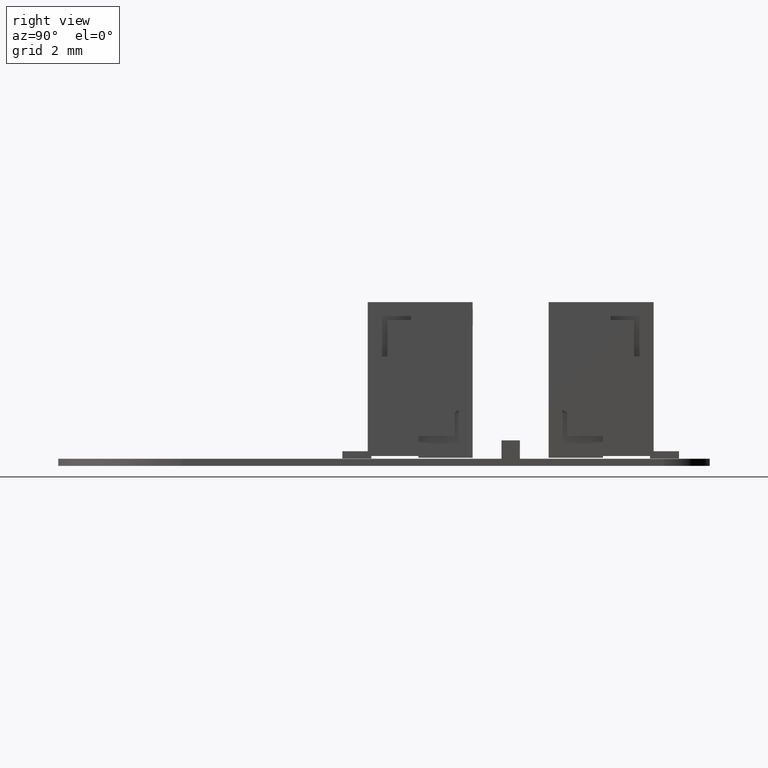
[diagram: clean part render]
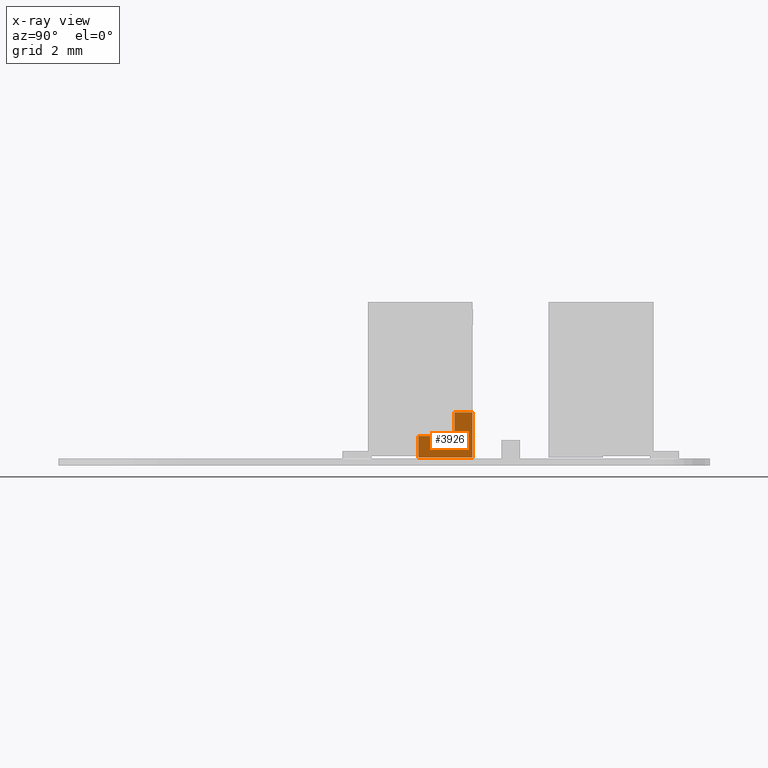
[diagram: x-ray — body ghosted, one internal face saturated and labeled with its STEP entity id]
A machine part, right view, then the same camera in x-ray: the body is ghosted and one INTERNAL B-rep face — a face not visible from any outside direction — is saturated and labeled: STEP entity #3926.
In plain terms, the highlighted planar face has unit normal (-1, -0, -0).
Its self-contained STEP definition (entity closure, byte-faithful):
#3744 = EDGE_CURVE('',#3745,#3747,#3749,.T.);
#3745 = VERTEX_POINT('',#3746);
#3746 = CARTESIAN_POINT('',(-2.5,-5.E-02,0.8));
#3747 = VERTEX_POINT('',#3748);
#3748 = CARTESIAN_POINT('',(-2.5,0.55,0.8));
#3749 = LINE('',#3750,#3751);
#3750 = CARTESIAN_POINT('',(-2.5,-5.E-02,0.8));
#3751 = VECTOR('',#3752,1.);
#3752 = DIRECTION('',(0.,1.,0.));
#3785 = VERTEX_POINT('',#3786);
#3786 = CARTESIAN_POINT('',(-2.5,1.2,-0.7));
#3794 = EDGE_CURVE('',#3785,#3795,#3797,.T.);
#3795 = VERTEX_POINT('',#3796);
#3796 = CARTESIAN_POINT('',(-2.5,-5.E-02,-0.7));
#3797 = LINE('',#3798,#3799);
#3798 = CARTESIAN_POINT('',(-2.5,6.420153254455,-0.7));
#3799 = VECTOR('',#3800,1.);
#3800 = DIRECTION('',(-1.224606353822E-16,-1.,8.551385416559E-31));
#3824 = EDGE_CURVE('',#3825,#3785,#3827,.T.);
#3825 = VERTEX_POINT('',#3826);
#3826 = CARTESIAN_POINT('',(-2.5,1.2,-0.2));
#3827 = LINE('',#3828,#3829);
#3828 = CARTESIAN_POINT('',(-2.5,1.2,0.8));
#3829 = VECTOR('',#3830,1.);
#3830 = DIRECTION('',(-5.20417042793E-15,0.,-1.));
#3855 = EDGE_CURVE('',#3825,#3856,#3858,.T.);
#3856 = VERTEX_POINT('',#3857);
#3857 = CARTESIAN_POINT('',(-2.5,0.55,-0.2));
#3858 = LINE('',#3859,#3860);
#3859 = CARTESIAN_POINT('',(-2.5,3.399328261452E-16,-0.2));
#3860 = VECTOR('',#3861,1.);
#3861 = DIRECTION('',(-1.224606353822E-16,-1.,1.668003342285E-15));
#3886 = EDGE_CURVE('',#3856,#3747,#3887,.T.);
#3887 = LINE('',#3888,#3889);
#3888 = CARTESIAN_POINT('',(-2.5,0.55,7.937898678886E-15));
#3889 = VECTOR('',#3890,1.);
#3890 = DIRECTION('',(5.20417042793E-15,-4.336808689942E-16,1.));
#3915 = EDGE_CURVE('',#3795,#3745,#3916,.T.);
#3916 = LINE('',#3917,#3918);
#3917 = CARTESIAN_POINT('',(-2.5,-5.E-02,-0.7));
#3918 = VECTOR('',#3919,1.);
#3919 = DIRECTION('',(6.982966722219E-15,0.,1.));
#3926 = ADVANCED_FACE('',(#3927),#3935,.F.);
#3927 = FACE_BOUND('',#3928,.T.);
#3928 = EDGE_LOOP('',(#3929,#3930,#3931,#3932,#3933,#3934));
#3929 = ORIENTED_EDGE('',*,*,#3915,.F.);
#3930 = ORIENTED_EDGE('',*,*,#3794,.F.);
#3931 = ORIENTED_EDGE('',*,*,#3824,.F.);
#3932 = ORIENTED_EDGE('',*,*,#3855,.T.);
#3933 = ORIENTED_EDGE('',*,*,#3886,.T.);
#3934 = ORIENTED_EDGE('',*,*,#3744,.F.);
#3935 = PLANE('',#3936);
#3936 = AXIS2_PLACEMENT_3D('',#3937,#3938,#3939);
#3937 = CARTESIAN_POINT('',(-2.5,0.55,-0.7));
#3938 = DIRECTION('',(-1.,0.,6.982966722219E-15));
#3939 = DIRECTION('',(6.982966722219E-15,0.,1.));